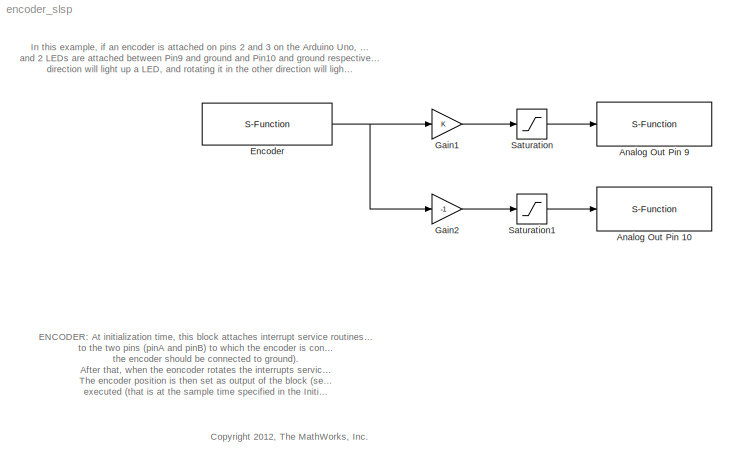
MODEL encoder_slsp
KIND model
BLOCK [S-Function] Analog Out Pin 10
  CopyFcn = set_param(gcbh,'LinkStatus','none')
  EnableBusSupport = off
  FunctionName = sfcn_aout
  InitFcn = try, set_param(gcb,'FunctionName','sfcn_aout'), end
  OpenFcn = sfunctionwizard(gcbh)
  Parameters = uint8(10)
  Ports = [1]
  PreSaveFcn = try, set_param(gcb,'FunctionName','sfcn_aout'), end
  SFunctionModules = sfcn_aout_wrapper
  SID = 6
  WizardData = DataTag0
BLOCK [S-Function] Analog Out Pin 9
  CopyFcn = set_param(gcbh,'LinkStatus','none')
  EnableBusSupport = off
  FunctionName = sfcn_aout
  InitFcn = try, set_param(gcb,'FunctionName','sfcn_aout'), end
  OpenFcn = sfunctionwizard(gcbh)
  Parameters = uint8(9)
  Ports = [1]
  PreSaveFcn = try, set_param(gcb,'FunctionName','sfcn_aout'), end
  SFunctionModules = sfcn_aout_wrapper
  SID = 5
  WizardData = DataTag1
BLOCK [S-Function] Encoder
  CopyFcn = set_param(gcbh,'LinkStatus','none')
  EnableBusSupport = off
  FunctionName = sfcn_encoder
  InitFcn = try, set_param(gcb,'FunctionName','sfcn_encoder'), end
  OpenFcn = sfunctionwizard(gcbh)
  Parameters = uint8(0),uint8(2),uint8(3)
  Ports = [0, 1]
  PreSaveFcn = try, set_param(gcb,'FunctionName','sfcn_encoder'), end
  SFunctionModules = sfcn_encoder_wrapper
  SID = 15
  WizardData = DataTag2
BLOCK [Gain] Gain1
  ParamDataTypeStr = Inherit: Inherit via internal rule
  SID = 10
  SaturateOnIntegerOverflow = off
BLOCK [Gain] Gain2
  Gain = -1
  ParamDataTypeStr = Inherit: Inherit via internal rule
  SID = 14
  SaturateOnIntegerOverflow = off
BLOCK [Saturate] Saturation
  InputPortMap = u0
  LowerLimit = 0
  OutDataTypeStr = uint8
  Ports = [1, 1]
  SID = 11
  UpperLimit = 255
BLOCK [Saturate] Saturation1
  InputPortMap = u0
  LowerLimit = 0
  OutDataTypeStr = uint8
  Ports = [1, 1]
  SID = 13
  UpperLimit = 255
ANNOTATION (root): <copyright redacted>
ANNOTATION (root): ENCODER: At initialization time, this block attaches interrupt service routines (written in the Libraries -> Include pane) \n to the two pins (pinA and pinB) to which the encoder is connected (the \"common\" central pin a.k.a. pinC of\n the encoder should be connected to ground). \n After that, when the eoncoder rotates the interrupts service routines update the encoder position. \n The encoder po...<+643ch>
ANNOTATION (root): In this example, if an encoder is attached on pins 2 and 3 on the Arduino Uno, (with its central pin connected to ground), \nand 2 LEDs are attached between Pin9 and ground and Pin10 and ground respectively, then rotating the encoder in one \ndirection will light up a LED, and rotating it in the other direction will light up the other one.
NET Encoder:1 -> Gain1:1, Gain2:1
LINE Gain1:1 -> Saturation:1
LINE Gain2:1 -> Saturation1:1
LINE Saturation1:1 -> Analog Out Pin 10:1
LINE Saturation:1 -> Analog Out Pin 9:1
note: NET lines group one-source signal fan-out (src -> all destinations, sorted); 1:1 wires keep LINE
